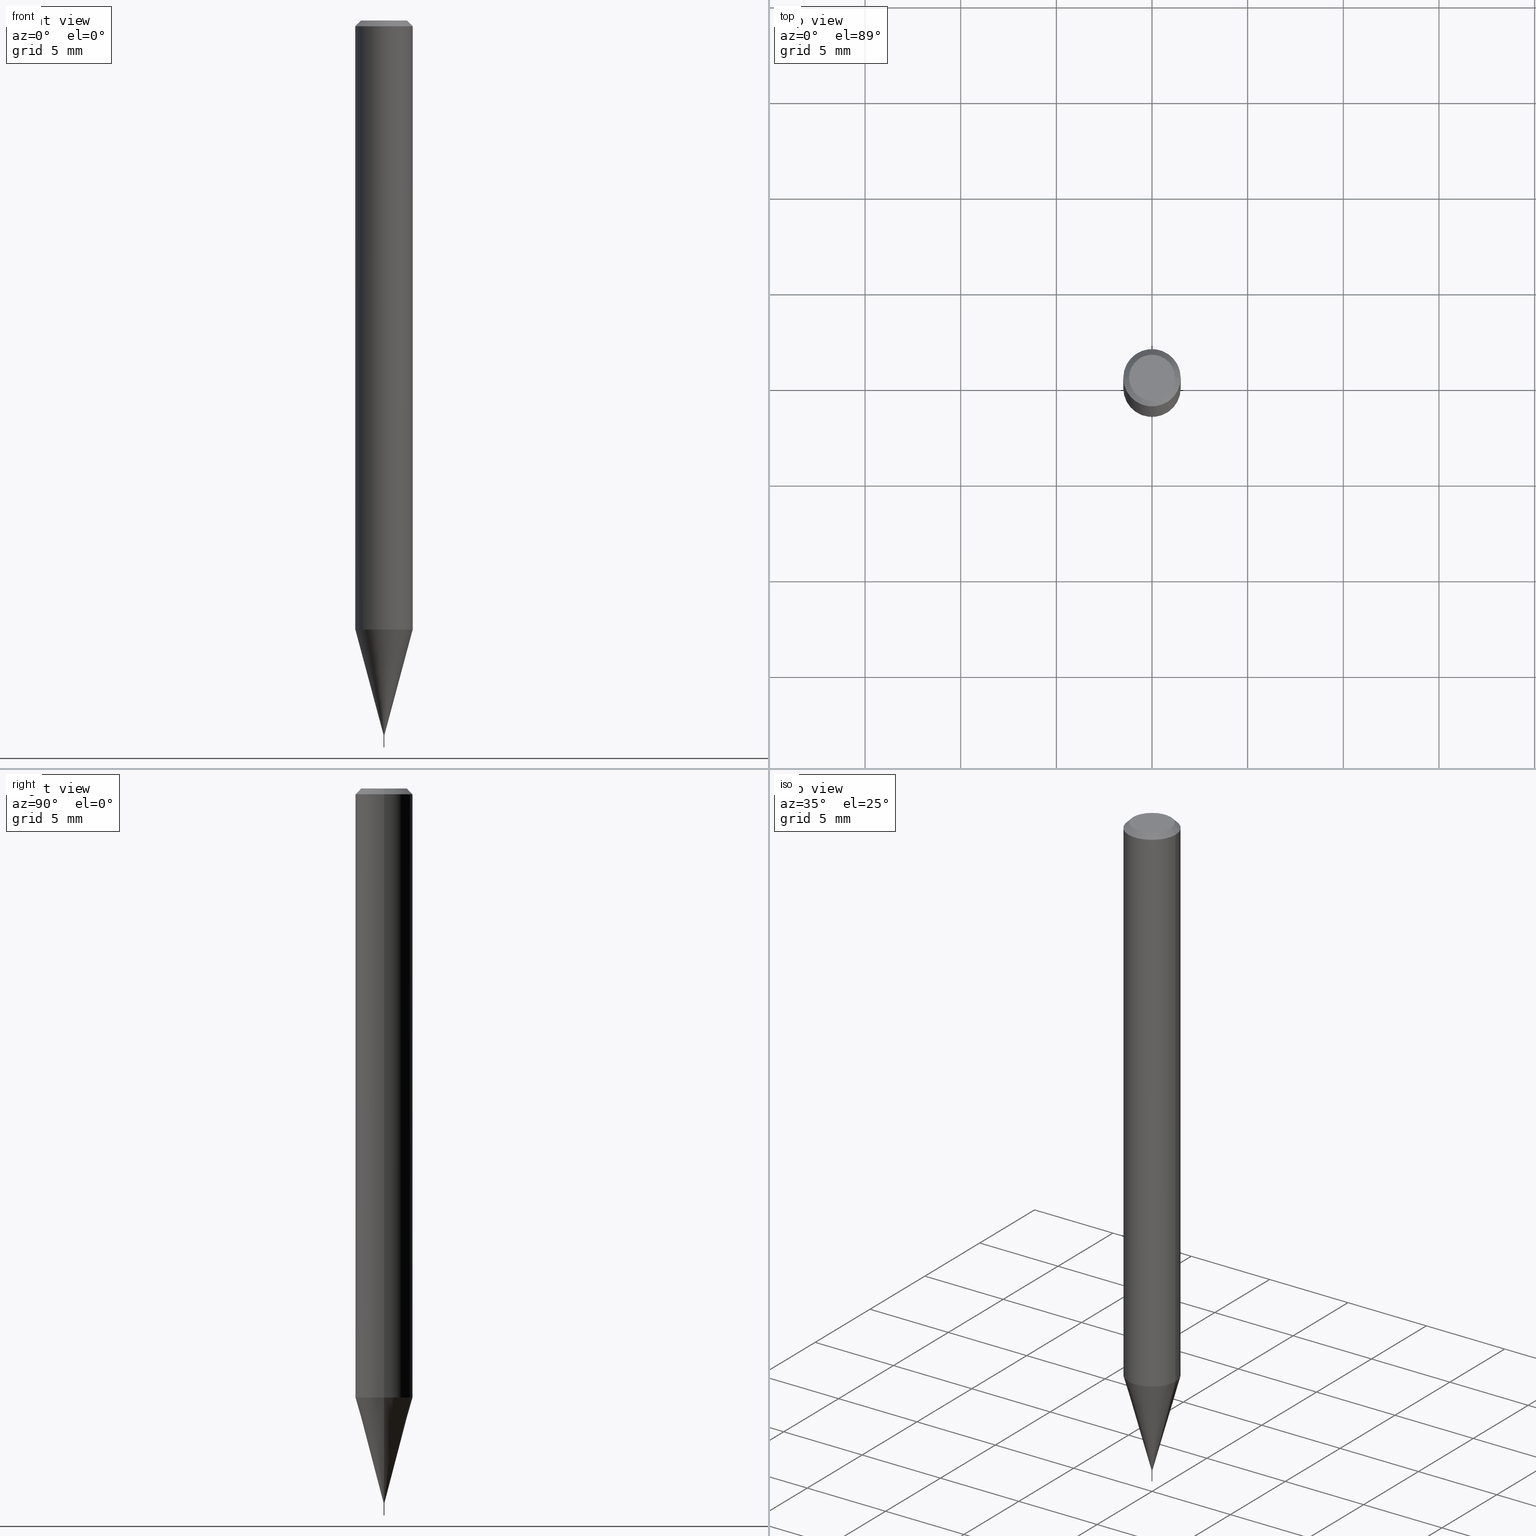
[diagram: canonical four-view strip — front | top / right | iso, engineering-drawing reading convention]
A machine part, canonical four-view strip (front | top / right | iso — engineering-drawing reading convention). The complete STEP part file that produces these views, byte-faithful:
ISO-10303-21;
HEADER;
FILE_DESCRIPTION (( 'STEP AP203' ),
    '1' );
FILE_NAME ('07723.STEP',
    '2024-04-24T01:42:25',
    ( '' ),
    ( '' ),
    'SwSTEP 2.0',
    'SolidWorks 2023',
    '' );
FILE_SCHEMA (( 'CONFIG_CONTROL_DESIGN' ));
ENDSEC;

DATA;
#1 = CONICAL_SURFACE ( 'NONE', #123, 0.05904999999999999832, 0.7853981633974450594 ) ;
#2 = CARTESIAN_POINT ( 'NONE',  ( -0.05905000000000014404, -3.955883447524345501E-15, -1.253181245539875643 ) ) ;
#3 = ORIENTED_EDGE ( 'NONE', *, *, #347, .F. ) ;
#4 = CARTESIAN_POINT ( 'NONE',  ( 0.05904999999999999832, -4.463468013801466955E-16, -0.01181000000000007565 ) ) ;
#5 = CC_DESIGN_PERSON_AND_ORGANIZATION_ASSIGNMENT ( #245, #406, ( #335 ) ) ;
#6 = ORIENTED_EDGE ( 'NONE', *, *, #40, .T. ) ;
#7 = FACE_OUTER_BOUND ( 'NONE', #131, .T. ) ;
#8 = CARTESIAN_POINT ( 'NONE',  ( 3.596061879495243061E-29, -5.134223308768844733E-15, -1.470499999999999696 ) ) ;
#9 = DIRECTION ( 'NONE',  ( 6.090539988449487346E-15, 0.8571673007020730317, 0.5150380749101196587 ) ) ;
#10 = AXIS2_PLACEMENT_3D ( 'NONE', #341, #464, #119 ) ;
#11 = CARTESIAN_POINT ( 'NONE',  ( 3.596061879495243061E-29, -5.134223308768844733E-15, -1.470499999999999696 ) ) ;
#12 = AXIS2_PLACEMENT_3D ( 'NONE', #183, #22, #277 ) ;
#13 = EDGE_CURVE ( 'NONE', #107, #181, #340, .T. ) ;
#14 = LINE ( 'NONE', #149, #301 ) ;
#15 = CARTESIAN_POINT ( 'NONE',  ( 2.888098660104664642E-31, -4.123439461173780879E-17, -0.01181000000000007565 ) ) ;
#16 = ORIENTED_EDGE ( 'NONE', *, *, #173, .T. ) ;
#17 = CC_DESIGN_PERSON_AND_ORGANIZATION_ASSIGNMENT ( #367, #133, ( #95 ) ) ;
#18 = CARTESIAN_POINT ( 'NONE',  ( -0.04724000000000000421, 3.504923541997677355E-16, -3.380025165670481712E-19 ) ) ;
#19 = CARTESIAN_POINT ( 'NONE',  ( -0.0008999999999999999754, -5.126780979745350845E-15, -1.470199999999999729 ) ) ;
#20 = CARTESIAN_POINT ( 'NONE',  ( 3.064615644464002051E-29, -4.375458932990685782E-15, -1.253181245539875643 ) ) ;
#21 = VERTEX_POINT ( 'NONE', #2 ) ;
#22 = DIRECTION ( 'NONE',  ( -2.445313392407574374E-29, 3.491703900218217471E-15, 1.000000000000000000 ) ) ;
#23 = FACE_OUTER_BOUND ( 'NONE', #63, .T. ) ;
#24 =( NAMED_UNIT ( * ) PLANE_ANGLE_UNIT ( ) SI_UNIT ( $, .RADIAN. ) );
#25 = ORIENTED_EDGE ( 'NONE', *, *, #487, .F. ) ;
#26 = VECTOR ( 'NONE', #224, 39.37007874015748143 ) ;
#27 = LOCAL_TIME ( 21, 42, 25.00000000000000000, #238 ) ;
#28 = FACE_OUTER_BOUND ( 'NONE', #171, .T. ) ;
#29 = ORIENTED_EDGE ( 'NONE', *, *, #427, .T. ) ;
#30 = EDGE_LOOP ( 'NONE', ( #474, #391, #134, #327 ) ) ;
#31 = PERSON_AND_ORGANIZATION ( #404, #206 ) ;
#32 = VERTEX_POINT ( 'NONE', #81 ) ;
#33 = DIRECTION ( 'NONE',  ( 1.000000000000000000, -6.982962677686656408E-15, 0.000000000000000000 ) ) ;
#34 = AXIS2_PLACEMENT_3D ( 'NONE', #349, #160, #432 ) ;
#35 = CIRCLE ( 'NONE', #110, 0.0008999999999999999754 ) ;
#36 = ADVANCED_FACE ( 'NONE', ( #451 ), #179, .F. ) ;
#37 = PERSON_AND_ORGANIZATION ( #404, #206 ) ;
#38 = ADVANCED_FACE ( 'NONE', ( #51 ), #298, .F. ) ;
#39 = PERSON_AND_ORGANIZATION_ROLE ( 'classification_officer' ) ;
#40 = EDGE_CURVE ( 'NONE', #214, #204, #364, .T. ) ;
#41 = AXIS2_PLACEMENT_3D ( 'NONE', #85, #147, #267 ) ;
#42 = CC_DESIGN_APPROVAL ( #453, ( #299 ) ) ;
#43 = DATE_TIME_ROLE ( 'creation_date' ) ;
#44 = ADVANCED_FACE ( 'NONE', ( #121 ), #1, .T. ) ;
#45 = AXIS2_PLACEMENT_3D ( 'NONE', #168, #325, #242 ) ;
#46 = ORIENTED_EDGE ( 'NONE', *, *, #91, .T. ) ;
#47 = CARTESIAN_POINT ( 'NONE',  ( 3.658894446281988811E-29, -5.223283652112388144E-15, -1.496099999999999985 ) ) ;
#48 = DIRECTION ( 'NONE',  ( -2.445468806185136597E-29, 3.491481338843145583E-15, 1.000000000000000000 ) ) ;
#49 = CYLINDRICAL_SURFACE ( 'NONE', #408, 0.0008999999999999999754 ) ;
#50 = DIRECTION ( 'NONE',  ( -6.982962677686265133E-15, -1.000000000000000000, 3.468864327942221753E-15 ) ) ;
#51 = FACE_OUTER_BOUND ( 'NONE', #217, .T. ) ;
#52 = CONICAL_SURFACE ( 'NONE', #12, 65.52281426575657974, 1.029744258676574598 ) ;
#53 = CARTESIAN_POINT ( 'NONE',  ( 8.265746106709734507E-48, -1.180129479067563789E-33, -3.380025165646692144E-19 ) ) ;
#54 = DIRECTION ( 'NONE',  ( 1.000000000000000000, -6.982962677686266711E-15, 4.876185090822587894E-29 ) ) ;
#55 = DIRECTION ( 'NONE',  ( 1.000000000000000000, -6.982962677685849403E-15, 0.000000000000000000 ) ) ;
#56 = ADVANCED_FACE ( 'NONE', ( #211 ), #461, .T. ) ;
#57 = CARTESIAN_POINT ( 'NONE',  ( 0.0008999999999999999754, -5.138762234509341431E-15, -1.469999999999999973 ) ) ;
#58 = DIRECTION ( 'NONE',  ( -0.2588190451025281225, 5.211531920934590485E-15, 0.9659258262890662028 ) ) ;
#59 = DIRECTION ( 'NONE',  ( -2.445468806185136597E-29, 3.491481338843145583E-15, 1.000000000000000000 ) ) ;
#60 = ORIENTED_EDGE ( 'NONE', *, *, #352, .T. ) ;
#61 = ADVANCED_FACE ( 'NONE', ( #296 ), #407, .T. ) ;
#62 = DIRECTION ( 'NONE',  ( 2.445313392407574094E-29, -3.491703900218217471E-15, -1.000000000000000000 ) ) ;
#63 = EDGE_LOOP ( 'NONE', ( #60, #6 ) ) ;
#64 = SHAPE_DEFINITION_REPRESENTATION ( #207, #100 ) ;
#65 = CARTESIAN_POINT ( 'NONE',  ( 3.596061879495242500E-29, -5.134223308768843944E-15, -1.470499999999999474 ) ) ;
#66 = DIRECTION ( 'NONE',  ( 1.000000000000000000, -6.982962677686656408E-15, 0.000000000000000000 ) ) ;
#67 = VERTEX_POINT ( 'NONE', #219 ) ;
#68 = APPROVAL_ROLE ( '' ) ;
#69 = CARTESIAN_POINT ( 'NONE',  ( 3.064615644464002051E-29, -4.375458932990685782E-15, -1.253181245539875643 ) ) ;
#70 = EDGE_LOOP ( 'NONE', ( #400, #201, #199, #177 ) ) ;
#71 = CARTESIAN_POINT ( 'NONE',  ( 0.05905000000000014404, -4.787802879108061491E-15, -1.253181245539875643 ) ) ;
#72 = APPLICATION_PROTOCOL_DEFINITION ( 'international standard', 'config_control_design', 1994, #122 ) ;
#73 = VECTOR ( 'NONE', #266, 39.37007874015748143 ) ;
#74 = PERSON_AND_ORGANIZATION ( #404, #206 ) ;
#75 = SECURITY_CLASSIFICATION_LEVEL ( 'unclassified' ) ;
#76 = AXIS2_PLACEMENT_3D ( 'NONE', #65, #165, #475 ) ;
#77 = VECTOR ( 'NONE', #384, 39.37007874015748143 ) ;
#78 = EDGE_CURVE ( 'NONE', #138, #434, #146, .T. ) ;
#79 = DIRECTION ( 'NONE',  ( -1.000000000000000000, 6.982962677686266711E-15, 0.000000000000000000 ) ) ;
#80 = EDGE_LOOP ( 'NONE', ( #284, #346, #338 ) ) ;
#81 = CARTESIAN_POINT ( 'NONE',  ( 3.658433366380971535E-29, -5.223938205116474295E-15, -1.496099999999999985 ) ) ;
#82 = LOCAL_TIME ( 21, 42, 25.00000000000000000, #139 ) ;
#83 = APPROVAL_STATUS ( 'not_yet_approved' ) ;
#84 = DIRECTION ( 'NONE',  ( -2.445468806185136597E-29, 3.491481338843145583E-15, 1.000000000000000000 ) ) ;
#85 = CARTESIAN_POINT ( 'NONE',  ( 3.596061879495243061E-29, -5.134223308768844733E-15, -1.470499999999999696 ) ) ;
#86 = DIRECTION ( 'NONE',  ( -1.000000000000000000, 6.982962677686266711E-15, 0.000000000000000000 ) ) ;
#87 = CARTESIAN_POINT ( 'NONE',  ( -0.05905000000000007465, 4.195754854663396902E-16, -2.904631170795525395E-30 ) ) ;
#88 = ORIENTED_EDGE ( 'NONE', *, *, #13, .F. ) ;
#89 = DIRECTION ( 'NONE',  ( -2.445313392407574374E-29, 3.491703900218217471E-15, 1.000000000000000000 ) ) ;
#90 = VECTOR ( 'NONE', #9, 39.37007874015748854 ) ;
#91 = EDGE_CURVE ( 'NONE', #67, #181, #234, .T. ) ;
#92 = LINE ( 'NONE', #228, #77 ) ;
#93 = MANIFOLD_SOLID_BREP ( 'Body-Move/Copy2[2]', #485 ) ;
#94 = ORIENTED_EDGE ( 'NONE', *, *, #388, .F. ) ;
#95 = PRODUCT_DEFINITION ( 'UNKNOWN', '', #335, #372 ) ;
#96 = DIRECTION ( 'NONE',  ( 1.000000000000000000, -6.982962677686266711E-15, 0.000000000000000000 ) ) ;
#97 = CARTESIAN_POINT ( 'NONE',  ( 0.000000000000000000, 0.000000000000000000, 0.000000000000000000 ) ) ;
#98 = ORIENTED_EDGE ( 'NONE', *, *, #208, .T. ) ;
#99 = CALENDAR_DATE ( 2024, 23, 4 ) ;
#100 = ADVANCED_BREP_SHAPE_REPRESENTATION ( '07723', ( #421, #93, #235 ), #365 ) ;
#101 = AXIS2_PLACEMENT_3D ( 'NONE', #414, #374, #116 ) ;
#102 = ORIENTED_EDGE ( 'NONE', *, *, #156, .T. ) ;
#103 = CONICAL_SURFACE ( 'NONE', #151, 65.52281426575657974, 1.029744258676574598 ) ;
#104 = CC_DESIGN_SECURITY_CLASSIFICATION ( #299, ( #335 ) ) ;
#105 = ORIENTED_EDGE ( 'NONE', *, *, #368, .T. ) ;
#106 = UNCERTAINTY_MEASURE_WITH_UNIT (LENGTH_MEASURE( 1.000000000000000082E-05 ), #426, 'distance_accuracy_value', 'NONE');
#107 = VERTEX_POINT ( 'NONE', #256 ) ;
#108 = EDGE_CURVE ( 'NONE', #32, #255, #378, .T. ) ;
#109 = CIRCLE ( 'NONE', #343, 0.05905000000000015098 ) ;
#110 = AXIS2_PLACEMENT_3D ( 'NONE', #158, #192, #360 ) ;
#111 = DIRECTION ( 'NONE',  ( -2.445468806185136877E-29, 3.491481338843145188E-15, 1.000000000000000000 ) ) ;
#112 = DIRECTION ( 'NONE',  ( 1.000000000000000000, -6.982962677686266711E-15, 0.000000000000000000 ) ) ;
#113 = EDGE_CURVE ( 'NONE', #107, #342, #115, .T. ) ;
#114 = DIRECTION ( 'NONE',  ( 1.000000000000000000, -6.982962677686266711E-15, 4.876185090822587894E-29 ) ) ;
#115 = CIRCLE ( 'NONE', #478, 0.04724000000000000421 ) ;
#116 = DIRECTION ( 'NONE',  ( 1.000000000000000000, -6.982962677685849403E-15, 0.000000000000000000 ) ) ;
#117 = LOCAL_TIME ( 21, 42, 25.00000000000000000, #253 ) ;
#118 = DIRECTION ( 'NONE',  ( -2.445313392407574374E-29, 3.491703900218217471E-15, 1.000000000000000000 ) ) ;
#119 = DIRECTION ( 'NONE',  ( 1.000000000000000000, -6.982962677686266711E-15, 4.876176775795935793E-29 ) ) ;
#120 = CARTESIAN_POINT ( 'NONE',  ( 3.658433366380971535E-29, -5.223938205116474295E-15, -1.496099999999999985 ) ) ;
#121 = FACE_OUTER_BOUND ( 'NONE', #358, .T. ) ;
#122 = APPLICATION_CONTEXT ( 'configuration controlled 3d designs of mechanical parts and assemblies' ) ;
#123 = AXIS2_PLACEMENT_3D ( 'NONE', #15, #221, #79 ) ;
#124 = CARTESIAN_POINT ( 'NONE',  ( 6.394884621877474137E-18, 0.0008999999999947782409, -1.495559225442875118 ) ) ;
#125 = CONICAL_SURFACE ( 'NONE', #172, 0.05904999999999999832, 0.7853981633974450594 ) ;
#126 = ORIENTED_EDGE ( 'NONE', *, *, #156, .F. ) ;
#127 = DIRECTION ( 'NONE',  ( -2.445468806185136877E-29, 3.491481338843145188E-15, 1.000000000000000000 ) ) ;
#128 = DIRECTION ( 'NONE',  ( -6.982962677686265922E-15, -1.000000000000000000, 0.000000000000000000 ) ) ;
#129 = ORIENTED_EDGE ( 'NONE', *, *, #212, .T. ) ;
#130 = DIRECTION ( 'NONE',  ( -2.445468806185136597E-29, 3.491481338843145583E-15, 1.000000000000000000 ) ) ;
#131 = EDGE_LOOP ( 'NONE', ( #305, #159, #184 ) ) ;
#132 = CALENDAR_DATE ( 2024, 23, 4 ) ;
#133 = PERSON_AND_ORGANIZATION_ROLE ( 'creator' ) ;
#134 = ORIENTED_EDGE ( 'NONE', *, *, #352, .F. ) ;
#135 = CONICAL_SURFACE ( 'NONE', #449, 0.0008999999999999999754, 0.2617993877991570684 ) ;
#136 = ORIENTED_EDGE ( 'NONE', *, *, #347, .T. ) ;
#137 = APPROVAL ( #288, 'UNSPECIFIED' ) ;
#138 = VERTEX_POINT ( 'NONE', #195 ) ;
#139 = COORDINATED_UNIVERSAL_TIME_OFFSET ( 5, 0, .BEHIND. ) ;
#140 = ADVANCED_FACE ( 'NONE', ( #469 ), #227, .T. ) ;
#141 = VECTOR ( 'NONE', #376, 39.37007874015748143 ) ;
#142 = LOCAL_TIME ( 21, 42, 25.00000000000000000, #369 ) ;
#143 = AXIS2_PLACEMENT_3D ( 'NONE', #392, #130, #359 ) ;
#144 = APPROVAL_PERSON_ORGANIZATION ( #74, #137, #450 ) ;
#145 = CC_DESIGN_PERSON_AND_ORGANIZATION_ASSIGNMENT ( #31, #480, ( #155 ) ) ;
#146 = LINE ( 'NONE', #380, #355 ) ;
#147 = DIRECTION ( 'NONE',  ( -2.445313392407574374E-29, 3.491703900218217471E-15, 1.000000000000000000 ) ) ;
#148 = EDGE_CURVE ( 'NONE', #255, #403, #446, .T. ) ;
#149 = CARTESIAN_POINT ( 'NONE',  ( -0.0003999999999999999107, -5.131381137825803856E-15, -1.470499999999999474 ) ) ;
#150 = CARTESIAN_POINT ( 'NONE',  ( 0.0008999999999999999754, -5.139460530777110033E-15, -1.470199999999999729 ) ) ;
#151 = AXIS2_PLACEMENT_3D ( 'NONE', #226, #118, #50 ) ;
#152 = ORIENTED_EDGE ( 'NONE', *, *, #276, .F. ) ;
#153 = LINE ( 'NONE', #87, #486 ) ;
#154 = DIRECTION ( 'NONE',  ( 1.000000000000000000, -6.982962677686266711E-15, 4.876176775795935793E-29 ) ) ;
#155 = PRODUCT ( '07723', '07723', '', ( #202 ) ) ;
#156 = EDGE_CURVE ( 'NONE', #434, #477, #467, .T. ) ;
#157 = CARTESIAN_POINT ( 'NONE',  ( -0.0008999999999999999754, -5.126431831611467333E-15, -1.470199999999999729 ) ) ;
#158 = CARTESIAN_POINT ( 'NONE',  ( 3.595328238853387268E-29, -5.133175864367191831E-15, -1.470199999999999729 ) ) ;
#159 = ORIENTED_EDGE ( 'NONE', *, *, #108, .T. ) ;
#160 = DIRECTION ( 'NONE',  ( -2.445313392407574374E-29, 3.491703900218217471E-15, 1.000000000000000000 ) ) ;
#161 = FACE_OUTER_BOUND ( 'NONE', #320, .T. ) ;
#162 = VECTOR ( 'NONE', #312, 39.37007874015748143 ) ;
#163 = EDGE_LOOP ( 'NONE', ( #152, #278, #229, #193 ) ) ;
#164 = EDGE_LOOP ( 'NONE', ( #282, #16, #471, #459 ) ) ;
#165 = DIRECTION ( 'NONE',  ( -2.445468806185136597E-29, 3.491481338843145583E-15, 1.000000000000000000 ) ) ;
#166 = DIRECTION ( 'NONE',  ( -2.445468806185136597E-29, 3.491481338843145583E-15, 1.000000000000000000 ) ) ;
#167 = ORIENTED_EDGE ( 'NONE', *, *, #413, .T. ) ;
#168 = CARTESIAN_POINT ( 'NONE',  ( 3.596061879495242500E-29, -5.134223308768843944E-15, -1.470499999999999474 ) ) ;
#169 = EDGE_CURVE ( 'NONE', #403, #255, #447, .T. ) ;
#170 = CARTESIAN_POINT ( 'NONE',  ( 0.0008999999999999999754, -6.284666409917640107E-18, 4.388559098216341846E-32 ) ) ;
#171 = EDGE_LOOP ( 'NONE', ( #396, #405, #241, #457 ) ) ;
#172 = AXIS2_PLACEMENT_3D ( 'NONE', #262, #418, #86 ) ;
#173 = EDGE_CURVE ( 'NONE', #236, #313, #196, .T. ) ;
#174 = DATE_AND_TIME ( #440, #142 ) ;
#175 = AXIS2_PLACEMENT_3D ( 'NONE', #8, #309, #412 ) ;
#176 = AXIS2_PLACEMENT_3D ( 'NONE', #468, #84, #433 ) ;
#177 = ORIENTED_EDGE ( 'NONE', *, *, #300, .F. ) ;
#178 = CONICAL_SURFACE ( 'NONE', #326, 0.0008999999999999999754, 0.2617993877991570684 ) ;
#179 = CYLINDRICAL_SURFACE ( 'NONE', #442, 0.0008999999999999999754 ) ;
#180 = ADVANCED_FACE ( 'NONE', ( #194 ), #247, .T. ) ;
#181 = VERTEX_POINT ( 'NONE', #441 ) ;
#182 = CALENDAR_DATE ( 2024, 23, 4 ) ;
#183 = CARTESIAN_POINT ( 'NONE',  ( -9.261351890110693527E-28, 1.322450465602917651E-13, 37.87397874015748300 ) ) ;
#184 = ORIENTED_EDGE ( 'NONE', *, *, #169, .F. ) ;
#185 = DIRECTION ( 'NONE',  ( -2.445468806185136597E-29, 3.491481338843145583E-15, 1.000000000000000000 ) ) ;
#186 = AXIS2_PLACEMENT_3D ( 'NONE', #189, #185, #271 ) ;
#187 = ORIENTED_EDGE ( 'NONE', *, *, #252, .T. ) ;
#188 = VERTEX_POINT ( 'NONE', #71 ) ;
#189 = CARTESIAN_POINT ( 'NONE',  ( 3.594839145092150259E-29, -5.132477568099423229E-15, -1.469999999999999973 ) ) ;
#190 = DIRECTION ( 'NONE',  ( 1.000000000000000000, -6.982962677686266711E-15, 4.876176775795936353E-29 ) ) ;
#191 = CARTESIAN_POINT ( 'NONE',  ( -0.05904999999999999832, 3.711095515056362547E-16, -0.01181000000000007565 ) ) ;
#192 = DIRECTION ( 'NONE',  ( -2.445468806185136597E-29, 3.491481338843145583E-15, 1.000000000000000000 ) ) ;
#193 = ORIENTED_EDGE ( 'NONE', *, *, #40, .F. ) ;
#194 = FACE_OUTER_BOUND ( 'NONE', #361, .T. ) ;
#195 = CARTESIAN_POINT ( 'NONE',  ( 0.0003999999999999999107, -5.137016493839918350E-15, -1.470499999999999474 ) ) ;
#196 = CIRCLE ( 'NONE', #143, 0.0008999999999999999754 ) ;
#197 = DIRECTION ( 'NONE',  ( 6.982962677686265922E-15, 1.000000000000000000, -3.491703900218217471E-15 ) ) ;
#198 = AXIS2_PLACEMENT_3D ( 'NONE', #470, #62, #197 ) ;
#199 = ORIENTED_EDGE ( 'NONE', *, *, #388, .T. ) ;
#200 = CARTESIAN_POINT ( 'NONE',  ( -0.0008999999999999999754, -5.126431831611467333E-15, -1.469999999999999973 ) ) ;
#201 = ORIENTED_EDGE ( 'NONE', *, *, #489, .T. ) ;
#202 = MECHANICAL_CONTEXT ( 'NONE', #304, 'mechanical' ) ;
#203 = DIRECTION ( 'NONE',  ( -6.982962677686265922E-15, -1.000000000000000000, 0.000000000000000000 ) ) ;
#204 = VERTEX_POINT ( 'NONE', #237 ) ;
#205 = AXIS2_PLACEMENT_3D ( 'NONE', #345, #261, #254 ) ;
#206 = ORGANIZATION ( 'UNSPECIFIED', 'UNSPECIFIED', '' ) ;
#207 = PRODUCT_DEFINITION_SHAPE ( 'NONE', 'NONE',  #95 ) ;
#208 = EDGE_CURVE ( 'NONE', #138, #232, #293, .T. ) ;
#209 = CLOSED_SHELL ( 'NONE', ( #56, #431, #319, #292, #285 ) ) ;
#210 = VECTOR ( 'NONE', #127, 39.37007874015748143 ) ;
#211 = FACE_OUTER_BOUND ( 'NONE', #30, .T. ) ;
#212 = EDGE_CURVE ( 'NONE', #236, #21, #490, .T. ) ;
#213 = EDGE_LOOP ( 'NONE', ( #29, #286 ) ) ;
#214 = VERTEX_POINT ( 'NONE', #353 ) ;
#215 = AXIS2_PLACEMENT_3D ( 'NONE', #435, #401, #33 ) ;
#216 = DATE_AND_TIME ( #375, #117 ) ;
#217 = EDGE_LOOP ( 'NONE', ( #244, #466 ) ) ;
#218 = DIRECTION ( 'NONE',  ( 2.438088387897960049E-29, -3.491481338843145188E-15, -1.000000000000000000 ) ) ;
#219 = CARTESIAN_POINT ( 'NONE',  ( -0.05904999999999999832, -1.788771178334871474E-15, -0.01181000000000007565 ) ) ;
#220 = DIRECTION ( 'NONE',  ( -2.445468806185136877E-29, 3.491481338843145188E-15, 1.000000000000000000 ) ) ;
#221 = DIRECTION ( 'NONE',  ( 2.445468806185136597E-29, -3.491481338843145583E-15, -1.000000000000000000 ) ) ;
#222 = DIRECTION ( 'NONE',  ( -2.445313392407574374E-29, 3.491703900218217471E-15, 1.000000000000000000 ) ) ;
#223 = AXIS2_PLACEMENT_3D ( 'NONE', #53, #389, #114 ) ;
#224 = DIRECTION ( 'NONE',  ( -0.7071067811865452413, 2.468850131082233000E-15, -0.7071067811865497932 ) ) ;
#225 =( NAMED_UNIT ( * ) SI_UNIT ( $, .STERADIAN. ) SOLID_ANGLE_UNIT ( ) );
#226 = CARTESIAN_POINT ( 'NONE',  ( -9.261351890110693527E-28, 1.322450465602917651E-13, 37.87397874015748300 ) ) ;
#227 = CYLINDRICAL_SURFACE ( 'NONE', #258, 0.05905000000000007465 ) ;
#228 = CARTESIAN_POINT ( 'NONE',  ( 6.394884621876860921E-18, 0.0008999999999948657360, -1.470499999999999696 ) ) ;
#229 = ORIENTED_EDGE ( 'NONE', *, *, #334, .T. ) ;
#230 = FACE_OUTER_BOUND ( 'NONE', #213, .T. ) ;
#231 = DIRECTION ( 'NONE',  ( -2.445468806185136597E-29, 3.491481338843145583E-15, 1.000000000000000000 ) ) ;
#232 = VERTEX_POINT ( 'NONE', #268 ) ;
#233 = DATE_AND_TIME ( #99, #259 ) ;
#234 = CIRCLE ( 'NONE', #410, 0.05904999999999999832 ) ;
#235 = AXIS2_PLACEMENT_3D ( 'NONE', #243, #370, #402 ) ;
#236 = VERTEX_POINT ( 'NONE', #157 ) ;
#237 = CARTESIAN_POINT ( 'NONE',  ( -6.284666409881678373E-18, -0.0009000000000051342148, -1.470499999999999696 ) ) ;
#238 = COORDINATED_UNIVERSAL_TIME_OFFSET ( 5, 0, .BEHIND. ) ;
#239 = DIRECTION ( 'NONE',  ( -2.445313392407574374E-29, 3.491703900218217471E-15, 1.000000000000000000 ) ) ;
#240 = DIRECTION ( 'NONE',  ( 1.000000000000000000, -6.982962677686271444E-15, 0.000000000000000000 ) ) ;
#241 = ORIENTED_EDGE ( 'NONE', *, *, #399, .T. ) ;
#242 = DIRECTION ( 'NONE',  ( 1.000000000000000000, -6.982962677685849403E-15, 0.000000000000000000 ) ) ;
#243 = CARTESIAN_POINT ( 'NONE',  ( 0.000000000000000000, 0.000000000000000000, 0.000000000000000000 ) ) ;
#244 = ORIENTED_EDGE ( 'NONE', *, *, #208, .F. ) ;
#245 = PERSON_AND_ORGANIZATION ( #404, #206 ) ;
#246 = ADVANCED_FACE ( 'NONE', ( #458 ), #425, .F. ) ;
#247 = CONICAL_SURFACE ( 'NONE', #76, 0.0003999999999999999107, 0.7853981633978224242 ) ;
#248 = APPROVAL_DATE_TIME ( #287, #307 ) ;
#249 = CC_DESIGN_PERSON_AND_ORGANIZATION_ASSIGNMENT ( #283, #39, ( #299 ) ) ;
#250 = EDGE_CURVE ( 'NONE', #342, #67, #310, .T. ) ;
#251 = AXIS2_PLACEMENT_3D ( 'NONE', #344, #423, #96 ) ;
#252 = EDGE_CURVE ( 'NONE', #232, #138, #331, .T. ) ;
#253 = COORDINATED_UNIVERSAL_TIME_OFFSET ( 5, 0, .BEHIND. ) ;
#254 = DIRECTION ( 'NONE',  ( 1.000000000000000000, -6.982962677686265922E-15, 4.876176775795935793E-29 ) ) ;
#255 = VERTEX_POINT ( 'NONE', #124 ) ;
#256 = CARTESIAN_POINT ( 'NONE',  ( 0.04724000000000000421, -3.852183633974369345E-16, -3.380025165621689721E-19 ) ) ;
#257 = DATE_AND_TIME ( #182, #27 ) ;
#258 = AXIS2_PLACEMENT_3D ( 'NONE', #97, #390, #190 ) ;
#259 = LOCAL_TIME ( 21, 42, 25.00000000000000000, #484 ) ;
#260 = CARTESIAN_POINT ( 'NONE',  ( 4.132873053354867254E-48, -5.900647395337818946E-34, -1.690012582823346072E-19 ) ) ;
#261 = DIRECTION ( 'NONE',  ( -2.438088387897960049E-29, 3.491481338843145188E-15, 1.000000000000000000 ) ) ;
#262 = CARTESIAN_POINT ( 'NONE',  ( 2.888098660104664642E-31, -4.123439461173780879E-17, -0.01181000000000007565 ) ) ;
#263 = CARTESIAN_POINT ( 'NONE',  ( 0.0008999999999999999754, -5.139460530777110033E-15, -1.470199999999999729 ) ) ;
#264 = ADVANCED_FACE ( 'NONE', ( #273 ), #135, .T. ) ;
#265 = ORIENTED_EDGE ( 'NONE', *, *, #250, .T. ) ;
#266 = DIRECTION ( 'NONE',  ( -5.985567269335655712E-15, -0.8571673007020693680, 0.5150380749101256539 ) ) ;
#267 = DIRECTION ( 'NONE',  ( -6.982962677686265922E-15, -1.000000000000000000, 0.000000000000000000 ) ) ;
#268 = CARTESIAN_POINT ( 'NONE',  ( -0.0003999999999999999107, -5.128731910651693444E-15, -1.470499999999999474 ) ) ;
#269 = PRODUCT_RELATED_PRODUCT_CATEGORY ( 'detail', '', ( #155 ) ) ;
#270 =( LENGTH_UNIT ( ) NAMED_UNIT ( * ) SI_UNIT ( $, .METRE. ) );
#271 = DIRECTION ( 'NONE',  ( 1.000000000000000000, -6.982962677686656408E-15, 0.000000000000000000 ) ) ;
#272 = AXIS2_PLACEMENT_3D ( 'NONE', #260, #218, #379 ) ;
#273 = FACE_OUTER_BOUND ( 'NONE', #275, .T. ) ;
#274 = LINE ( 'NONE', #323, #162 ) ;
#275 = EDGE_LOOP ( 'NONE', ( #337, #129, #25, #430 ) ) ;
#276 = EDGE_CURVE ( 'NONE', #255, #214, #92, .T. ) ;
#277 = DIRECTION ( 'NONE',  ( -6.982962677686265133E-15, -1.000000000000000000, 3.468864327942221753E-15 ) ) ;
#278 = ORIENTED_EDGE ( 'NONE', *, *, #148, .T. ) ;
#279 = CC_DESIGN_PERSON_AND_ORGANIZATION_ASSIGNMENT ( #328, #366, ( #335 ) ) ;
#280 = DIRECTION ( 'NONE',  ( -2.445468806185136597E-29, 3.491481338843145583E-15, 1.000000000000000000 ) ) ;
#281 = FACE_OUTER_BOUND ( 'NONE', #164, .T. ) ;
#282 = ORIENTED_EDGE ( 'NONE', *, *, #212, .F. ) ;
#283 = PERSON_AND_ORGANIZATION ( #404, #206 ) ;
#284 = ORIENTED_EDGE ( 'NONE', *, *, #108, .F. ) ;
#285 = ADVANCED_FACE ( 'NONE', ( #23 ), #318, .F. ) ;
#286 = ORIENTED_EDGE ( 'NONE', *, *, #113, .T. ) ;
#287 = DATE_AND_TIME ( #132, #82 ) ;
#288 = APPROVAL_STATUS ( 'not_yet_approved' ) ;
#289 = AXIS2_PLACEMENT_3D ( 'NONE', #357, #387, #55 ) ;
#290 = APPROVAL_PERSON_ORGANIZATION ( #333, #307, #488 ) ;
#291 = ADVANCED_FACE ( 'NONE', ( #28 ), #125, .T. ) ;
#292 = ADVANCED_FACE ( 'NONE', ( #381 ), #49, .T. ) ;
#293 = CIRCLE ( 'NONE', #45, 0.0003999999999999999107 ) ;
#294 = AXIS2_PLACEMENT_3D ( 'NONE', #69, #166, #240 ) ;
#295 = DIRECTION ( 'NONE',  ( 0.7071067811868120279, -2.468850131085027540E-15, 0.7071067811862830066 ) ) ;
#296 = FACE_OUTER_BOUND ( 'NONE', #445, .T. ) ;
#297 = PLANE ( 'NONE',  #272 ) ;
#298 = PLANE ( 'NONE',  #205 ) ;
#299 = SECURITY_CLASSIFICATION ( '', '', #75 ) ;
#300 = EDGE_CURVE ( 'NONE', #313, #434, #473, .T. ) ;
#301 = VECTOR ( 'NONE', #417, 39.37007874015748143 ) ;
#302 = LINE ( 'NONE', #150, #385 ) ;
#303 = CARTESIAN_POINT ( 'NONE',  ( 8.265746106709734507E-48, -1.180129479067563789E-33, -3.380025165646692144E-19 ) ) ;
#304 = APPLICATION_CONTEXT ( 'configuration controlled 3d designs of mechanical parts and assemblies' ) ;
#305 = ORIENTED_EDGE ( 'NONE', *, *, #373, .F. ) ;
#306 = ORIENTED_EDGE ( 'NONE', *, *, #427, .F. ) ;
#307 = APPROVAL ( #83, 'UNSPECIFIED' ) ;
#308 = LINE ( 'NONE', #419, #411 ) ;
#309 = DIRECTION ( 'NONE',  ( -2.445313392407574374E-29, 3.491703900218217471E-15, 1.000000000000000000 ) ) ;
#310 = LINE ( 'NONE', #191, #26 ) ;
#311 = EDGE_CURVE ( 'NONE', #313, #188, #302, .T. ) ;
#312 = DIRECTION ( 'NONE',  ( -2.445468806185136877E-29, 3.491481338843145188E-15, 1.000000000000000000 ) ) ;
#313 = VERTEX_POINT ( 'NONE', #263 ) ;
#314 = DIMENSIONAL_EXPONENTS ( 1.000000000000000000, 0.000000000000000000, 0.000000000000000000, 0.000000000000000000, 0.000000000000000000, 0.000000000000000000, 0.000000000000000000 ) ;
#315 = VECTOR ( 'NONE', #58, 39.37007874015748854 ) ;
#316 = CYLINDRICAL_SURFACE ( 'NONE', #176, 0.05905000000000007465 ) ;
#317 = CIRCLE ( 'NONE', #223, 0.04724000000000000421 ) ;
#318 = PLANE ( 'NONE',  #198 ) ;
#319 = ADVANCED_FACE ( 'NONE', ( #456 ), #103, .T. ) ;
#320 = EDGE_LOOP ( 'NONE', ( #3, #439, #105, #348 ) ) ;
#321 = CARTESIAN_POINT ( 'NONE',  ( 3.657339539074066349E-29, -5.221722703984179357E-15, -1.495559225442875118 ) ) ;
#322 = ORIENTED_EDGE ( 'NONE', *, *, #300, .T. ) ;
#323 = CARTESIAN_POINT ( 'NONE',  ( -0.0008999999999999999754, 6.394884621840901498E-18, -4.427041581229415360E-32 ) ) ;
#324 = ORIENTED_EDGE ( 'NONE', *, *, #78, .T. ) ;
#325 = DIRECTION ( 'NONE',  ( -2.445468806185136597E-29, 3.491481338843145583E-15, 1.000000000000000000 ) ) ;
#326 = AXIS2_PLACEMENT_3D ( 'NONE', #438, #59, #66 ) ;
#327 = ORIENTED_EDGE ( 'NONE', *, *, #334, .F. ) ;
#328 = PERSON_AND_ORGANIZATION ( #404, #206 ) ;
#329 = ORIENTED_EDGE ( 'NONE', *, *, #487, .T. ) ;
#330 = DATE_TIME_ROLE ( 'classification_date' ) ;
#331 = CIRCLE ( 'NONE', #289, 0.0003999999999999999107 ) ;
#332 = CC_DESIGN_APPROVAL ( #307, ( #335 ) ) ;
#333 = PERSON_AND_ORGANIZATION ( #404, #206 ) ;
#334 = EDGE_CURVE ( 'NONE', #403, #204, #308, .T. ) ;
#335 = PRODUCT_DEFINITION_FORMATION_WITH_SPECIFIED_SOURCE ( 'ANY', '', #155, .NOT_KNOWN. ) ;
#336 = CC_DESIGN_DATE_AND_TIME_ASSIGNMENT ( #257, #43, ( #95 ) ) ;
#337 = ORIENTED_EDGE ( 'NONE', *, *, #482, .T. ) ;
#338 = ORIENTED_EDGE ( 'NONE', *, *, #148, .F. ) ;
#339 = CARTESIAN_POINT ( 'NONE',  ( -6.284666409881064387E-18, -0.0009000000000052218183, -1.495559225442875118 ) ) ;
#340 = LINE ( 'NONE', #4, #141 ) ;
#341 = CARTESIAN_POINT ( 'NONE',  ( 0.000000000000000000, 0.000000000000000000, 0.000000000000000000 ) ) ;
#342 = VERTEX_POINT ( 'NONE', #18 ) ;
#343 = AXIS2_PLACEMENT_3D ( 'NONE', #20, #395, #476 ) ;
#344 = CARTESIAN_POINT ( 'NONE',  ( 2.888098660104664642E-31, -4.123439461173780879E-17, -0.01181000000000007565 ) ) ;
#345 = CARTESIAN_POINT ( 'NONE',  ( 7.048919441337158505E-27, 9.991613953620558163E-13, -1.470499999999999474 ) ) ;
#346 = ORIENTED_EDGE ( 'NONE', *, *, #373, .T. ) ;
#347 = EDGE_CURVE ( 'NONE', #21, #67, #153, .T. ) ;
#348 = ORIENTED_EDGE ( 'NONE', *, *, #91, .F. ) ;
#349 = CARTESIAN_POINT ( 'NONE',  ( 3.657339539074066349E-29, -5.221722703984179357E-15, -1.495559225442875118 ) ) ;
#350 = CARTESIAN_POINT ( 'NONE',  ( 3.596061879495243061E-29, -5.134223308768844733E-15, -1.470499999999999696 ) ) ;
#351 = DIRECTION ( 'NONE',  ( -2.445313392407574374E-29, 3.491703900218217471E-15, 1.000000000000000000 ) ) ;
#352 = EDGE_CURVE ( 'NONE', #204, #214, #371, .T. ) ;
#353 = CARTESIAN_POINT ( 'NONE',  ( 6.394884621877477989E-18, 0.0008999999999948657360, -1.470499999999999696 ) ) ;
#354 = ORIENTED_EDGE ( 'NONE', *, *, #489, .F. ) ;
#355 = VECTOR ( 'NONE', #295, 39.37007874015748143 ) ;
#356 = VECTOR ( 'NONE', #111, 39.37007874015748143 ) ;
#357 = CARTESIAN_POINT ( 'NONE',  ( 3.596061879495242500E-29, -5.134223308768843944E-15, -1.470499999999999474 ) ) ;
#358 = EDGE_LOOP ( 'NONE', ( #88, #306, #265, #46 ) ) ;
#359 = DIRECTION ( 'NONE',  ( 1.000000000000000000, -6.982962677686656408E-15, 0.000000000000000000 ) ) ;
#360 = DIRECTION ( 'NONE',  ( 1.000000000000000000, -6.982962677686656408E-15, 0.000000000000000000 ) ) ;
#361 = EDGE_LOOP ( 'NONE', ( #362, #187, #324, #94 ) ) ;
#362 = ORIENTED_EDGE ( 'NONE', *, *, #413, .F. ) ;
#363 = CC_DESIGN_DATE_AND_TIME_ASSIGNMENT ( #174, #330, ( #299 ) ) ;
#364 = CIRCLE ( 'NONE', #175, 0.0008999999999999999754 ) ;
#365 =( GEOMETRIC_REPRESENTATION_CONTEXT ( 3 ) GLOBAL_UNCERTAINTY_ASSIGNED_CONTEXT ( ( #106 ) ) GLOBAL_UNIT_ASSIGNED_CONTEXT ( ( #426, #24, #225 ) ) REPRESENTATION_CONTEXT ( 'NONE', 'WORKASPACE' ) );
#366 = PERSON_AND_ORGANIZATION_ROLE ( 'design_supplier' ) ;
#367 = PERSON_AND_ORGANIZATION ( #404, #206 ) ;
#368 = EDGE_CURVE ( 'NONE', #188, #181, #393, .T. ) ;
#369 = COORDINATED_UNIVERSAL_TIME_OFFSET ( 5, 0, .BEHIND. ) ;
#370 = DIRECTION ( 'NONE',  ( 0.000000000000000000, 0.000000000000000000, 1.000000000000000000 ) ) ;
#371 = CIRCLE ( 'NONE', #479, 0.0008999999999999999754 ) ;
#372 = DESIGN_CONTEXT ( 'detailed design', #122, 'design' ) ;
#373 = EDGE_CURVE ( 'NONE', #32, #403, #382, .T. ) ;
#374 = DIRECTION ( 'NONE',  ( -2.445468806185136597E-29, 3.491481338843145583E-15, 1.000000000000000000 ) ) ;
#375 = CALENDAR_DATE ( 2024, 23, 4 ) ;
#376 = DIRECTION ( 'NONE',  ( 0.7071067811865452413, -7.319954787623248157E-15, -0.7071067811865497932 ) ) ;
#377 = CIRCLE ( 'NONE', #294, 0.05905000000000015098 ) ;
#378 = LINE ( 'NONE', #47, #90 ) ;
#379 = DIRECTION ( 'NONE',  ( -1.000000000000000000, 6.982962677686265922E-15, -4.876176775795935793E-29 ) ) ;
#380 = CARTESIAN_POINT ( 'NONE',  ( 0.0003999999999999999107, -5.137016493839918350E-15, -1.470499999999999474 ) ) ;
#381 = FACE_OUTER_BOUND ( 'NONE', #163, .T. ) ;
#382 = LINE ( 'NONE', #120, #73 ) ;
#383 = DIRECTION ( 'NONE',  ( -2.445468806185136597E-29, 3.491481338843145583E-15, 1.000000000000000000 ) ) ;
#384 = DIRECTION ( 'NONE',  ( -2.445313392407574374E-29, 3.491703900218217471E-15, 1.000000000000000000 ) ) ;
#385 = VECTOR ( 'NONE', #454, 39.37007874015748854 ) ;
#386 = CARTESIAN_POINT ( 'NONE',  ( 0.05905000000000007465, -4.123439461173745750E-16, 2.879382386107504074E-30 ) ) ;
#387 = DIRECTION ( 'NONE',  ( -2.445468806185136597E-29, 3.491481338843145583E-15, 1.000000000000000000 ) ) ;
#388 = EDGE_CURVE ( 'NONE', #477, #434, #443, .T. ) ;
#389 = DIRECTION ( 'NONE',  ( -2.445468806185136597E-29, 3.491481338843145583E-15, 1.000000000000000000 ) ) ;
#390 = DIRECTION ( 'NONE',  ( -2.445468806185136597E-29, 3.491481338843145583E-15, 1.000000000000000000 ) ) ;
#391 = ORIENTED_EDGE ( 'NONE', *, *, #276, .T. ) ;
#392 = CARTESIAN_POINT ( 'NONE',  ( 3.595328238853387268E-29, -5.133175864367191831E-15, -1.470199999999999729 ) ) ;
#393 = LINE ( 'NONE', #386, #210 ) ;
#394 = DIRECTION ( 'NONE',  ( 1.000000000000000000, -6.982962677686656408E-15, 0.000000000000000000 ) ) ;
#395 = DIRECTION ( 'NONE',  ( -2.445468806185136597E-29, 3.491481338843145583E-15, 1.000000000000000000 ) ) ;
#396 = ORIENTED_EDGE ( 'NONE', *, *, #113, .F. ) ;
#397 = APPROVAL_DATE_TIME ( #233, #453 ) ;
#398 = EDGE_LOOP ( 'NONE', ( #329, #136, #462, #422 ) ) ;
#399 = EDGE_CURVE ( 'NONE', #181, #67, #455, .T. ) ;
#400 = ORIENTED_EDGE ( 'NONE', *, *, #173, .F. ) ;
#401 = DIRECTION ( 'NONE',  ( -2.445468806185136597E-29, 3.491481338843145583E-15, 1.000000000000000000 ) ) ;
#402 = DIRECTION ( 'NONE',  ( 1.000000000000000000, 0.000000000000000000, 0.000000000000000000 ) ) ;
#403 = VERTEX_POINT ( 'NONE', #339 ) ;
#404 = PERSON ( 'UNSPECIFIED', 'UNSPECIFIED', 'UNSPECIFIED', ('UNSPECIFIED'), ('UNSPECIFIED'), ('UNSPECIFIED') ) ;
#405 = ORIENTED_EDGE ( 'NONE', *, *, #13, .T. ) ;
#406 = PERSON_AND_ORGANIZATION_ROLE ( 'creator' ) ;
#407 = CONICAL_SURFACE ( 'NONE', #101, 0.0003999999999999999107, 0.7853981633978224242 ) ;
#408 = AXIS2_PLACEMENT_3D ( 'NONE', #11, #239, #203 ) ;
#409 = APPLICATION_PROTOCOL_DEFINITION ( 'international standard', 'config_control_design', 1994, #304 ) ;
#410 = AXIS2_PLACEMENT_3D ( 'NONE', #452, #48, #112 ) ;
#411 = VECTOR ( 'NONE', #89, 39.37007874015748143 ) ;
#412 = DIRECTION ( 'NONE',  ( -6.982962677686265922E-15, -1.000000000000000000, 0.000000000000000000 ) ) ;
#413 = EDGE_CURVE ( 'NONE', #232, #477, #14, .T. ) ;
#414 = CARTESIAN_POINT ( 'NONE',  ( 3.596061879495242500E-29, -5.134223308768843944E-15, -1.470499999999999474 ) ) ;
#415 = AXIS2_PLACEMENT_3D ( 'NONE', #321, #351, #128 ) ;
#416 = APPROVAL_PERSON_ORGANIZATION ( #37, #453, #68 ) ;
#417 = DIRECTION ( 'NONE',  ( -0.7071067811868120279, 7.493145998871310260E-15, 0.7071067811862830066 ) ) ;
#418 = DIRECTION ( 'NONE',  ( 2.445468806185136597E-29, -3.491481338843145583E-15, -1.000000000000000000 ) ) ;
#419 = CARTESIAN_POINT ( 'NONE',  ( -6.284666409881678373E-18, -0.0009000000000051342148, -1.470499999999999696 ) ) ;
#420 = EDGE_LOOP ( 'NONE', ( #354, #481, #322, #102 ) ) ;
#421 = MANIFOLD_SOLID_BREP ( 'Body-Move/Copy2[1]', #209 ) ;
#422 = ORIENTED_EDGE ( 'NONE', *, *, #368, .F. ) ;
#423 = DIRECTION ( 'NONE',  ( -2.445468806185136597E-29, 3.491481338843145583E-15, 1.000000000000000000 ) ) ;
#424 = CARTESIAN_POINT ( 'NONE',  ( 0.000000000000000000, 0.000000000000000000, 0.000000000000000000 ) ) ;
#425 = CYLINDRICAL_SURFACE ( 'NONE', #10, 0.0008999999999999999754 ) ;
#426 =( CONVERSION_BASED_UNIT ( 'INCH', #465 ) LENGTH_UNIT ( ) NAMED_UNIT ( #314 ) );
#427 = EDGE_CURVE ( 'NONE', #342, #107, #317, .T. ) ;
#428 = CC_DESIGN_APPROVAL ( #137, ( #95 ) ) ;
#429 = CARTESIAN_POINT ( 'NONE',  ( 3.595328238853387268E-29, -5.133175864367191831E-15, -1.470199999999999729 ) ) ;
#430 = ORIENTED_EDGE ( 'NONE', *, *, #311, .F. ) ;
#431 = ADVANCED_FACE ( 'NONE', ( #7 ), #52, .T. ) ;
#432 = DIRECTION ( 'NONE',  ( -6.982962677686265922E-15, -1.000000000000000000, 0.000000000000000000 ) ) ;
#433 = DIRECTION ( 'NONE',  ( 1.000000000000000000, -6.982962677686266711E-15, 4.876176775795936353E-29 ) ) ;
#434 = VERTEX_POINT ( 'NONE', #57 ) ;
#435 = CARTESIAN_POINT ( 'NONE',  ( 3.594839145092150259E-29, -5.132477568099423229E-15, -1.469999999999999973 ) ) ;
#436 = ADVANCED_FACE ( 'NONE', ( #161 ), #316, .T. ) ;
#437 = ADVANCED_FACE ( 'NONE', ( #230 ), #297, .F. ) ;
#438 = CARTESIAN_POINT ( 'NONE',  ( 3.595328238853387268E-29, -5.133175864367191831E-15, -1.470199999999999729 ) ) ;
#439 = ORIENTED_EDGE ( 'NONE', *, *, #448, .T. ) ;
#440 = CALENDAR_DATE ( 2024, 23, 4 ) ;
#441 = CARTESIAN_POINT ( 'NONE',  ( 0.05904999999999999832, -4.535783407291118600E-16, -0.01181000000000007565 ) ) ;
#442 = AXIS2_PLACEMENT_3D ( 'NONE', #424, #383, #154 ) ;
#443 = CIRCLE ( 'NONE', #186, 0.0008999999999999999754 ) ;
#444 = ORIENTED_EDGE ( 'NONE', *, *, #78, .F. ) ;
#445 = EDGE_LOOP ( 'NONE', ( #98, #167, #126, #444 ) ) ;
#446 = CIRCLE ( 'NONE', #415, 0.0008999999999999999754 ) ;
#447 = CIRCLE ( 'NONE', #34, 0.0008999999999999999754 ) ;
#448 = EDGE_CURVE ( 'NONE', #21, #188, #109, .T. ) ;
#449 = AXIS2_PLACEMENT_3D ( 'NONE', #429, #231, #394 ) ;
#450 = APPROVAL_ROLE ( '' ) ;
#451 = FACE_OUTER_BOUND ( 'NONE', #420, .T. ) ;
#452 = CARTESIAN_POINT ( 'NONE',  ( 2.888098660104664642E-31, -4.123439461173780879E-17, -0.01181000000000007565 ) ) ;
#453 = APPROVAL ( #483, 'UNSPECIFIED' ) ;
#454 = DIRECTION ( 'NONE',  ( 0.2588190451025281225, 1.565188264969568128E-15, 0.9659258262890662028 ) ) ;
#455 = CIRCLE ( 'NONE', #251, 0.05904999999999999832 ) ;
#456 = FACE_OUTER_BOUND ( 'NONE', #80, .T. ) ;
#457 = ORIENTED_EDGE ( 'NONE', *, *, #250, .F. ) ;
#458 = FACE_OUTER_BOUND ( 'NONE', #70, .T. ) ;
#459 = ORIENTED_EDGE ( 'NONE', *, *, #448, .F. ) ;
#460 = DIRECTION ( 'NONE',  ( -6.982962677686265922E-15, -1.000000000000000000, 0.000000000000000000 ) ) ;
#461 = CYLINDRICAL_SURFACE ( 'NONE', #41, 0.0008999999999999999754 ) ;
#462 = ORIENTED_EDGE ( 'NONE', *, *, #399, .F. ) ;
#463 = APPROVAL_DATE_TIME ( #216, #137 ) ;
#464 = DIRECTION ( 'NONE',  ( -2.445468806185136597E-29, 3.491481338843145583E-15, 1.000000000000000000 ) ) ;
#465 = LENGTH_MEASURE_WITH_UNIT ( LENGTH_MEASURE( 0.02539999999999999897 ), #270 );
#466 = ORIENTED_EDGE ( 'NONE', *, *, #252, .F. ) ;
#467 = CIRCLE ( 'NONE', #215, 0.0008999999999999999754 ) ;
#468 = CARTESIAN_POINT ( 'NONE',  ( 0.000000000000000000, 0.000000000000000000, 0.000000000000000000 ) ) ;
#469 = FACE_OUTER_BOUND ( 'NONE', #398, .T. ) ;
#470 = CARTESIAN_POINT ( 'NONE',  ( 3.596061879495243061E-29, -5.134223308768844733E-15, -1.470499999999999696 ) ) ;
#471 = ORIENTED_EDGE ( 'NONE', *, *, #311, .T. ) ;
#472 = ADVANCED_FACE ( 'NONE', ( #281 ), #178, .T. ) ;
#473 = LINE ( 'NONE', #170, #356 ) ;
#474 = ORIENTED_EDGE ( 'NONE', *, *, #169, .T. ) ;
#475 = DIRECTION ( 'NONE',  ( 1.000000000000000000, -6.982962677685849403E-15, 0.000000000000000000 ) ) ;
#476 = DIRECTION ( 'NONE',  ( 1.000000000000000000, -6.982962677686271444E-15, 0.000000000000000000 ) ) ;
#477 = VERTEX_POINT ( 'NONE', #200 ) ;
#478 = AXIS2_PLACEMENT_3D ( 'NONE', #303, #280, #54 ) ;
#479 = AXIS2_PLACEMENT_3D ( 'NONE', #350, #222, #460 ) ;
#480 = PERSON_AND_ORGANIZATION_ROLE ( 'design_owner' ) ;
#481 = ORIENTED_EDGE ( 'NONE', *, *, #482, .F. ) ;
#482 = EDGE_CURVE ( 'NONE', #313, #236, #35, .T. ) ;
#483 = APPROVAL_STATUS ( 'not_yet_approved' ) ;
#484 = COORDINATED_UNIVERSAL_TIME_OFFSET ( 5, 0, .BEHIND. ) ;
#485 = CLOSED_SHELL ( 'NONE', ( #61, #291, #140, #264, #246, #36, #472, #436, #44, #437, #38, #180 ) ) ;
#486 = VECTOR ( 'NONE', #220, 39.37007874015748143 ) ;
#487 = EDGE_CURVE ( 'NONE', #188, #21, #377, .T. ) ;
#488 = APPROVAL_ROLE ( '' ) ;
#489 = EDGE_CURVE ( 'NONE', #236, #477, #274, .T. ) ;
#490 = LINE ( 'NONE', #19, #315 ) ;
ENDSEC;
END-ISO-10303-21;
